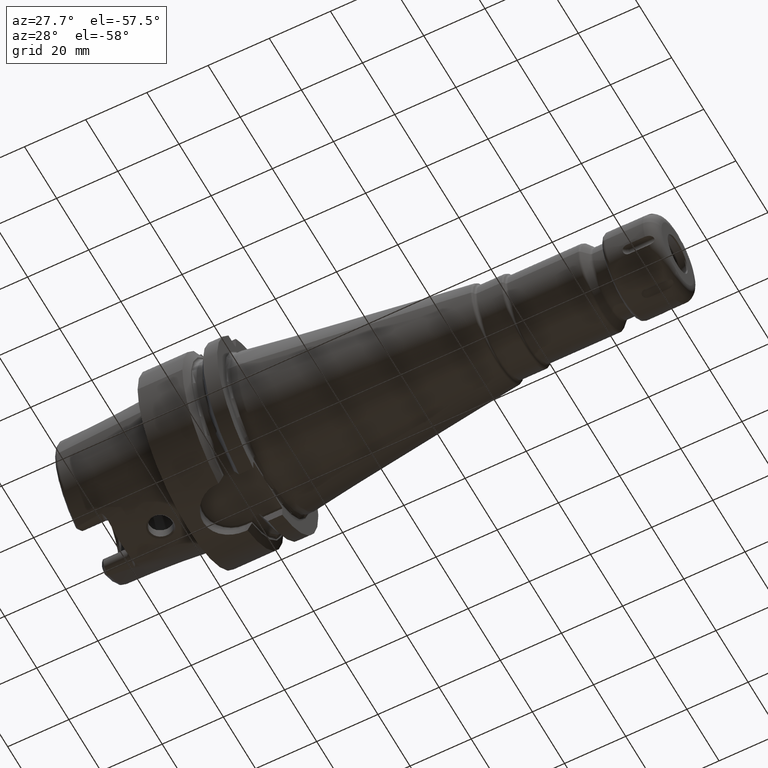
[diagram: clean part render]
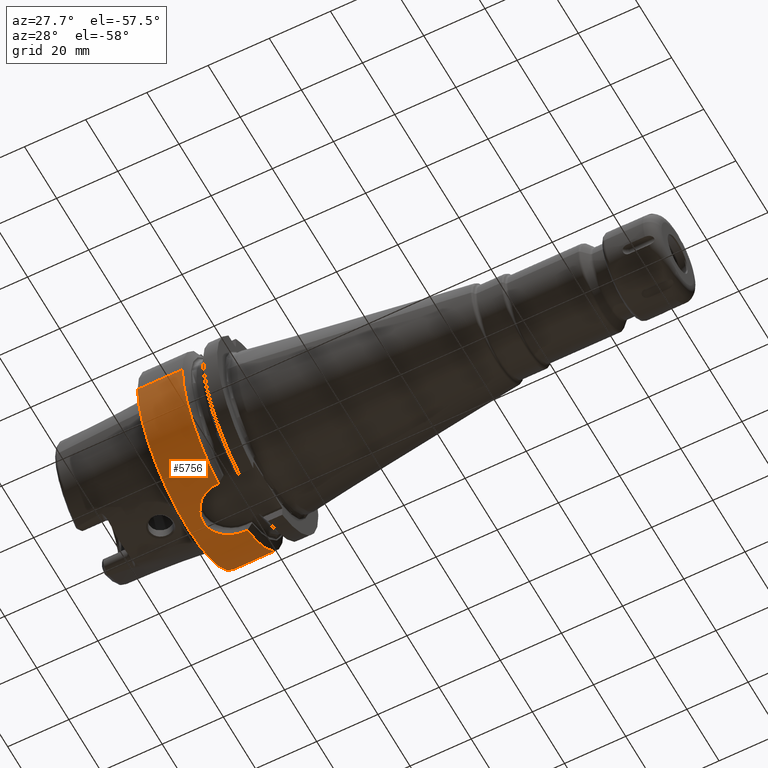
[diagram: same view with one face highlighted and labeled with its STEP entity id]
A machine part, auxiliary view. The second image highlights one B-rep face of the part: STEP entity #5756.
In plain terms, the highlighted cylindrical surface (partial cylindrical patch) has radius 31.5 mm, axis along (1, 0, 0).
Its self-contained STEP definition (entity closure, byte-faithful):
#1073=CARTESIAN_POINT('',(-1.421085471520E-14,0.E0,0.E0));
#1074=DIRECTION('',(-1.E0,0.E0,0.E0));
#1075=DIRECTION('',(0.E0,1.E0,0.E0));
#1076=AXIS2_PLACEMENT_3D('',#1073,#1074,#1075);
#1124=CARTESIAN_POINT('',(2.E0,3.15E1,-1.916034746595E-14));
#1126=CARTESIAN_POINT('',(1.2E1,3.15E1,0.E0));
#1993=CARTESIAN_POINT('',(1.39675E1,9.0175E0,-3.018169467989E1));
#1994=CARTESIAN_POINT('',(1.358558656281E1,9.0175E0,-3.018169467989E1));
#1995=CARTESIAN_POINT('',(1.282118465468E1,8.969691357916E0,-3.019604517684E1));
#1996=CARTESIAN_POINT('',(1.165591828593E1,8.743491566228E0,-3.026274300150E1));
#1997=CARTESIAN_POINT('',(1.052276298313E1,8.361963120688E0,-3.037104920547E1));
#1998=CARTESIAN_POINT('',(9.456122836012E0,7.837772025634E0,-3.051135915032E1));
#1999=CARTESIAN_POINT('',(8.470252282138E0,7.180724754911E0,-3.067358430769E1));
#2000=CARTESIAN_POINT('',(7.575631308163E0,6.398050863983E0,-3.084741609441E1));
#2001=CARTESIAN_POINT('',(6.786194961893E0,5.497065304782E0,-3.102161724462E1));
#2002=CARTESIAN_POINT('',(6.130229967676E0,4.511622175765E0,-3.118093411543E1));
#2003=CARTESIAN_POINT('',(5.609342792779E0,3.453031312959E0,-3.131662634576E1));
#2004=CARTESIAN_POINT('',(5.228345621102E0,2.326812347583E0,-3.142101017036E1));
#2005=CARTESIAN_POINT('',(4.999797746036E0,1.164288452435E0,-3.148568890825E1));
#2006=CARTESIAN_POINT('',(4.925086592477E0,-1.642939922344E-4,
-3.150715972921E1));
#2007=CARTESIAN_POINT('',(4.999855898167E0,-1.164866928839E0,
-3.148567217088E1));
#2008=CARTESIAN_POINT('',(5.228566513789E0,-2.327652949522E0,
-3.142094829471E1));
#2009=CARTESIAN_POINT('',(5.609617740094E0,-3.453657849156E0,
-3.131655310854E1));
#2010=CARTESIAN_POINT('',(6.130421690937E0,-4.511937610781E0,
-3.118088635565E1));
#2011=CARTESIAN_POINT('',(6.786402135999E0,-5.497346241188E0,
-3.102156844966E1));
#2012=CARTESIAN_POINT('',(7.576014991373E0,-6.398444919226E0,
-3.084733497918E1));
#2013=CARTESIAN_POINT('',(8.470738074749E0,-7.181093772441E0,
-3.067349724349E1));
#2014=CARTESIAN_POINT('',(9.456668390199E0,-7.838101066607E0,
-3.051127521442E1));
#2015=CARTESIAN_POINT('',(1.052385858790E1,-8.362443708215E0,
-3.037091729406E1));
#2016=CARTESIAN_POINT('',(1.165737665338E1,-8.743869582945E0,
-3.026263280158E1));
#2017=CARTESIAN_POINT('',(1.282210884292E1,-8.969775642486E0,
-3.019601972103E1));
#2018=CARTESIAN_POINT('',(1.358595047E1,-9.0175E0,-3.018169467989E1));
#2019=CARTESIAN_POINT('',(1.39675E1,-9.0175E0,-3.018169467989E1));
#2021=DIRECTION('',(1.E0,0.E0,0.E0));
#2022=VECTOR('',#2021,6.550009252407E-1);
#2023=CARTESIAN_POINT('',(1.39675E1,9.0175E0,-3.018169467989E1));
#2024=LINE('',#2023,#2022);
#2025=CARTESIAN_POINT('',(1.462250092524E1,0.E0,0.E0));
#2026=DIRECTION('',(1.E0,0.E0,0.E0));
#2027=DIRECTION('',(0.E0,2.862698412698E-1,-9.581490374568E-1));
#2028=AXIS2_PLACEMENT_3D('',#2025,#2026,#2027);
#2030=DIRECTION('',(-1.E0,0.E0,0.E0));
#2031=VECTOR('',#2030,2.622500925241E0);
#2032=CARTESIAN_POINT('',(1.462250092524E1,3.15E1,0.E0));
#2033=LINE('',#2032,#2031);
#2034=CARTESIAN_POINT('',(7.E0,3.110064308017E1,-5.E0));
#2035=CARTESIAN_POINT('',(7.237711971861E0,3.110064308017E1,-5.E0));
#2036=CARTESIAN_POINT('',(7.708364793932E0,3.110604176585E1,-4.966603280739E0));
#2037=CARTESIAN_POINT('',(8.409071627816E0,3.113002370339E1,-4.815048141531E0));
#2038=CARTESIAN_POINT('',(9.077383280619E0,3.116768201896E1,-4.566768250610E0));
#2039=CARTESIAN_POINT('',(9.709737219660E0,3.121653000009E1,-4.222389763166E0));
#2040=CARTESIAN_POINT('',(1.028259694179E1,3.127184472959E1,-3.794310232818E0));
#2041=CARTESIAN_POINT('',(1.079381736502E1,3.133002109497E1,-3.283144879213E0));
#2042=CARTESIAN_POINT('',(1.122187341968E1,3.138511895323E1,-2.710559209569E0));
#2043=CARTESIAN_POINT('',(1.156650397528E1,3.143365111660E1,-2.077946235915E0));
#2044=CARTESIAN_POINT('',(1.181475018474E1,3.147092885130E1,-1.410108381556E0));
#2045=CARTESIAN_POINT('',(1.196660689769E1,3.149467147123E1,
-7.086190467967E-1));
#2046=CARTESIAN_POINT('',(1.2E1,3.15E1,-2.377578867780E-1));
#2047=CARTESIAN_POINT('',(1.2E1,3.15E1,0.E0));
#2049=CARTESIAN_POINT('',(2.E0,3.15E1,-1.916034746595E-14));
#2050=CARTESIAN_POINT('',(2.E0,3.15E1,-2.377563632343E-1));
#2051=CARTESIAN_POINT('',(2.033376819090E0,3.149467390288E1,
-7.086329282889E-1));
#2052=CARTESIAN_POINT('',(2.185379667149E0,3.147090888892E1,-1.410571551366E0));
#2053=CARTESIAN_POINT('',(2.433605027219E0,3.143363519165E1,-2.078170817110E0));
#2054=CARTESIAN_POINT('',(2.778328809062E0,3.138509141893E1,-2.710884364051E0));
#2055=CARTESIAN_POINT('',(3.206392404829E0,3.132999596018E1,-3.283376693298E0));
#2056=CARTESIAN_POINT('',(3.717592314676E0,3.127182433739E1,-3.794478939285E0));
#2057=CARTESIAN_POINT('',(4.290556434518E0,3.121650481486E1,-4.222574092482E0));
#2058=CARTESIAN_POINT('',(4.922767506481E0,3.116767216438E1,-4.566833856024E0));
#2059=CARTESIAN_POINT('',(5.591173550853E0,3.113001241939E1,-4.815121163512E0));
#2060=CARTESIAN_POINT('',(6.291762024521E0,3.110604002637E1,-4.966613612597E0));
#2061=CARTESIAN_POINT('',(6.762337956938E0,3.110064308017E1,-5.E0));
#2062=CARTESIAN_POINT('',(7.E0,3.110064308017E1,-5.E0));
#2064=DIRECTION('',(-1.E0,0.E0,1.086605287208E-14));
#2065=VECTOR('',#2064,2.E0);
#2066=CARTESIAN_POINT('',(2.E0,3.15E1,-1.916034746595E-14));
#2067=LINE('',#2066,#2065);
#2068=DIRECTION('',(-1.E0,0.E0,0.E0));
#2069=VECTOR('',#2068,1.462250092524E1);
#2070=CARTESIAN_POINT('',(1.462250092524E1,-3.15E1,0.E0));
#2071=LINE('',#2070,#2069);
#2072=CARTESIAN_POINT('',(1.462250092524E1,0.E0,0.E0));
#2073=DIRECTION('',(1.E0,0.E0,0.E0));
#2074=DIRECTION('',(0.E0,-1.E0,0.E0));
#2075=AXIS2_PLACEMENT_3D('',#2072,#2073,#2074);
#2077=DIRECTION('',(1.E0,0.E0,0.E0));
#2078=VECTOR('',#2077,6.550009252407E-1);
#2079=CARTESIAN_POINT('',(1.39675E1,-9.0175E0,-3.018169467989E1));
#2080=LINE('',#2079,#2078);
#2897=CARTESIAN_POINT('',(-1.421085471520E-14,3.15E1,0.E0));
#2898=CARTESIAN_POINT('',(-1.421085471520E-14,-3.15E1,0.E0));
#2899=VERTEX_POINT('',#2897);
#2900=VERTEX_POINT('',#2898);
#3118=CARTESIAN_POINT('',(1.462250092524E1,-3.15E1,0.E0));
#3119=VERTEX_POINT('',#3118);
#3146=CARTESIAN_POINT('',(7.E0,3.110064308017E1,-5.E0));
#3147=VERTEX_POINT('',#3146);
#3148=VERTEX_POINT('',#1124);
#3149=VERTEX_POINT('',#1126);
#3150=CARTESIAN_POINT('',(1.462250092524E1,3.15E1,0.E0));
#3151=VERTEX_POINT('',#3150);
#3238=CARTESIAN_POINT('',(1.39675E1,-9.0175E0,-3.018169467989E1));
#3239=VERTEX_POINT('',#3238);
#3240=CARTESIAN_POINT('',(1.39675E1,9.0175E0,-3.018169467989E1));
#3241=VERTEX_POINT('',#3240);
#3276=CARTESIAN_POINT('',(1.462250092524E1,9.0175E0,-3.018169467989E1));
#3277=VERTEX_POINT('',#3276);
#3278=CARTESIAN_POINT('',(1.462250092524E1,-9.0175E0,-3.018169467989E1));
#3279=VERTEX_POINT('',#3278);
#5732=CARTESIAN_POINT('',(-3.49E1,0.E0,0.E0));
#5733=DIRECTION('',(1.E0,0.E0,0.E0));
#5734=DIRECTION('',(0.E0,-1.E0,0.E0));
#5735=AXIS2_PLACEMENT_3D('',#5732,#5733,#5734);
#5736=CYLINDRICAL_SURFACE('',#5735,3.15E1);
#5738=ORIENTED_EDGE('',*,*,#5737,.F.);
#5739=ORIENTED_EDGE('',*,*,#4858,.T.);
#5741=ORIENTED_EDGE('',*,*,#5740,.T.);
#5742=ORIENTED_EDGE('',*,*,#4716,.T.);
#5744=ORIENTED_EDGE('',*,*,#5743,.F.);
#5746=ORIENTED_EDGE('',*,*,#5745,.F.);
#5747=ORIENTED_EDGE('',*,*,#4710,.T.);
#5748=ORIENTED_EDGE('',*,*,#4685,.T.);
#5749=ORIENTED_EDGE('',*,*,#4707,.F.);
#5751=ORIENTED_EDGE('',*,*,#5750,.T.);
#5753=ORIENTED_EDGE('',*,*,#5752,.F.);
#5754=EDGE_LOOP('',(#5738,#5739,#5741,#5742,#5744,#5746,#5747,#5748,#5749,#5751,
#5753));
#5755=FACE_OUTER_BOUND('',#5754,.F.);
#5756=ADVANCED_FACE('',(#5755),#5736,.T.);
#1077=CIRCLE('',#1076,3.15E1);
#2020=B_SPLINE_CURVE_WITH_KNOTS('',3,(#1993,#1994,#1995,#1996,#1997,#1998,#1999,
#2000,#2001,#2002,#2003,#2004,#2005,#2006,#2007,#2008,#2009,#2010,#2011,#2012,
#2013,#2014,#2015,#2016,#2017,#2018,#2019),.UNSPECIFIED.,.F.,.F.,(4,1,1,1,1,1,1,
1,1,1,1,1,1,1,1,1,1,1,1,1,1,1,1,1,4),(0.E0,4.166666666667E-2,8.333333333333E-2,
1.25E-1,1.666666666667E-1,2.083333333333E-1,2.5E-1,2.916666666667E-1,
3.333333333333E-1,3.75E-1,4.166666666667E-1,4.583333333333E-1,5.E-1,
5.416666666667E-1,5.833333333333E-1,6.25E-1,6.666666666667E-1,7.083333333333E-1,
7.5E-1,7.916666666667E-1,8.333333333333E-1,8.75E-1,9.166666666667E-1,
9.583333333333E-1,1.E0),.UNSPECIFIED.);
#2029=CIRCLE('',#2028,3.15E1);
#2048=B_SPLINE_CURVE_WITH_KNOTS('',3,(#2034,#2035,#2036,#2037,#2038,#2039,#2040,
#2041,#2042,#2043,#2044,#2045,#2046,#2047),.UNSPECIFIED.,.F.,.F.,(4,1,1,1,1,1,1,
1,1,1,1,4),(0.E0,9.090909090909E-2,1.818181818182E-1,2.727272727273E-1,
3.636363636364E-1,4.545454545455E-1,5.454545454545E-1,6.363636363636E-1,
7.272727272727E-1,8.181818181818E-1,9.090909090909E-1,1.E0),.UNSPECIFIED.);
#2063=B_SPLINE_CURVE_WITH_KNOTS('',3,(#2049,#2050,#2051,#2052,#2053,#2054,#2055,
#2056,#2057,#2058,#2059,#2060,#2061,#2062),.UNSPECIFIED.,.F.,.F.,(4,1,1,1,1,1,1,
1,1,1,1,4),(0.E0,9.090909090909E-2,1.818181818182E-1,2.727272727273E-1,
3.636363636364E-1,4.545454545455E-1,5.454545454545E-1,6.363636363636E-1,
7.272727272727E-1,8.181818181818E-1,9.090909090909E-1,1.E0),.UNSPECIFIED.);
#2076=CIRCLE('',#2075,3.15E1);
#4685=EDGE_CURVE('',#2899,#2900,#1077,.T.);
#4707=EDGE_CURVE('',#3119,#2900,#2071,.T.);
#4710=EDGE_CURVE('',#3148,#2899,#2067,.T.);
#4716=EDGE_CURVE('',#3151,#3149,#2033,.T.);
#4858=EDGE_CURVE('',#3241,#3277,#2024,.T.);
#5737=EDGE_CURVE('',#3241,#3239,#2020,.T.);
#5740=EDGE_CURVE('',#3277,#3151,#2029,.T.);
#5743=EDGE_CURVE('',#3147,#3149,#2048,.T.);
#5745=EDGE_CURVE('',#3148,#3147,#2063,.T.);
#5750=EDGE_CURVE('',#3119,#3279,#2076,.T.);
#5752=EDGE_CURVE('',#3239,#3279,#2080,.T.);